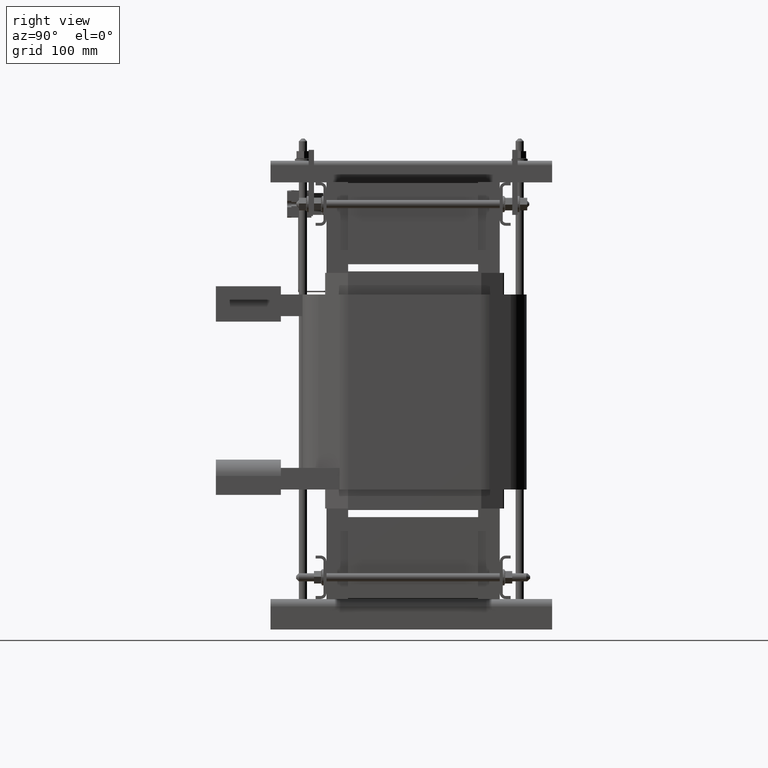
[diagram: clean part render]
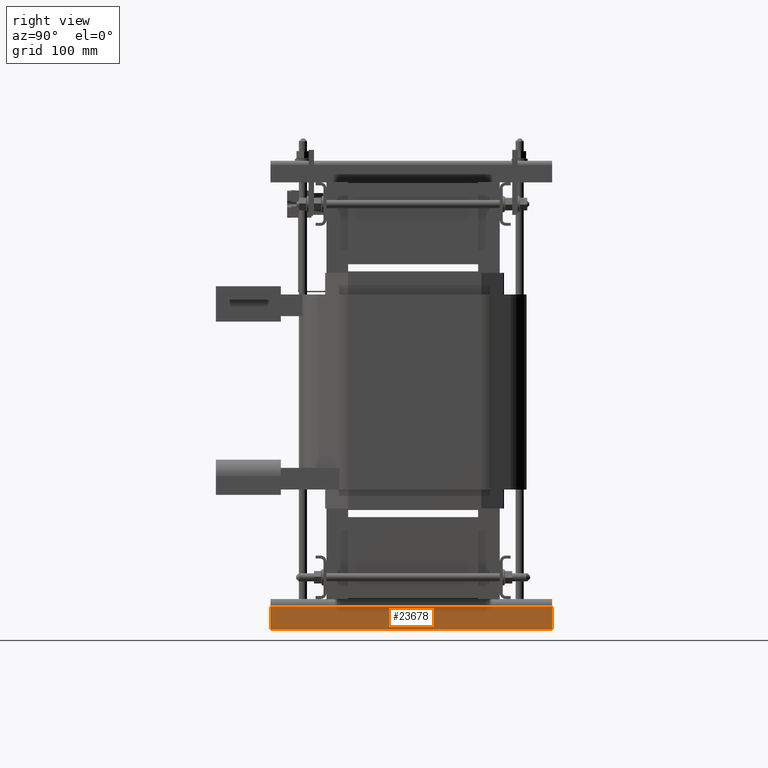
[diagram: same view with one face highlighted and labeled with its STEP entity id]
A machine part, right view. The second image highlights one B-rep face of the part: STEP entity #23678.
In plain terms, the highlighted planar face has unit normal (1, 0, -0).
Its self-contained STEP definition (entity closure, byte-faithful):
#2564=FACE_OUTER_BOUND('',#3887,.T.);
#3887=EDGE_LOOP('',(#16055,#16056,#16057,#16058));
#5320=LINE('',#34094,#7673);
#5328=LINE('',#34119,#7681);
#5345=LINE('',#34159,#7698);
#5346=LINE('',#34161,#7699);
#7673=VECTOR('',#27766,0.393700787401575);
#7681=VECTOR('',#27786,0.393700787401575);
#7698=VECTOR('',#27829,0.393700787401575);
#7699=VECTOR('',#27832,0.393700787401575);
#10023=VERTEX_POINT('',#34090);
#10025=VERTEX_POINT('',#34093);
#10035=VERTEX_POINT('',#34115);
#10046=VERTEX_POINT('',#34157);
#12377=EDGE_CURVE('',#10025,#10023,#5320,.T.);
#12390=EDGE_CURVE('',#10035,#10025,#5328,.T.);
#12410=EDGE_CURVE('',#10023,#10046,#5345,.T.);
#12411=EDGE_CURVE('',#10046,#10035,#5346,.T.);
#16055=ORIENTED_EDGE('',*,*,#12411,.T.);
#16056=ORIENTED_EDGE('',*,*,#12390,.T.);
#16057=ORIENTED_EDGE('',*,*,#12377,.T.);
#16058=ORIENTED_EDGE('',*,*,#12410,.T.);
#22915=PLANE('',#25661);
#23678=ADVANCED_FACE('',(#2564),#22915,.T.);
#25661=AXIS2_PLACEMENT_3D('',#34160,#27830,#27831);
#27766=DIRECTION('',(-1.,3.29883531310402E-16,0.));
#27786=DIRECTION('',(0.,0.,-1.));
#27829=DIRECTION('',(0.,0.,1.));
#27830=DIRECTION('center_axis',(3.29883531310402E-16,1.,0.));
#27831=DIRECTION('ref_axis',(0.,0.,1.));
#27832=DIRECTION('',(1.,-3.29883531310402E-16,0.));
#34090=CARTESIAN_POINT('',(-0.074430980180999,1.75562463431266,-6.5));
#34093=CARTESIAN_POINT('',(0.985569019818999,1.75562463431266,-6.5));
#34094=CARTESIAN_POINT('',(-0.074430980180999,1.75562463431266,-6.5));
#34115=CARTESIAN_POINT('',(0.985569019818999,1.75562463431266,6.5));
#34119=CARTESIAN_POINT('',(0.985569019818999,1.75562463431266,0.));
#34157=CARTESIAN_POINT('',(-0.074430980180999,1.75562463431266,6.5));
#34159=CARTESIAN_POINT('',(-0.074430980180999,1.75562463431266,0.));
#34160=CARTESIAN_POINT('Origin',(-0.074430980180999,1.75562463431266,0.));
#34161=CARTESIAN_POINT('',(-0.074430980180999,1.75562463431266,6.5));